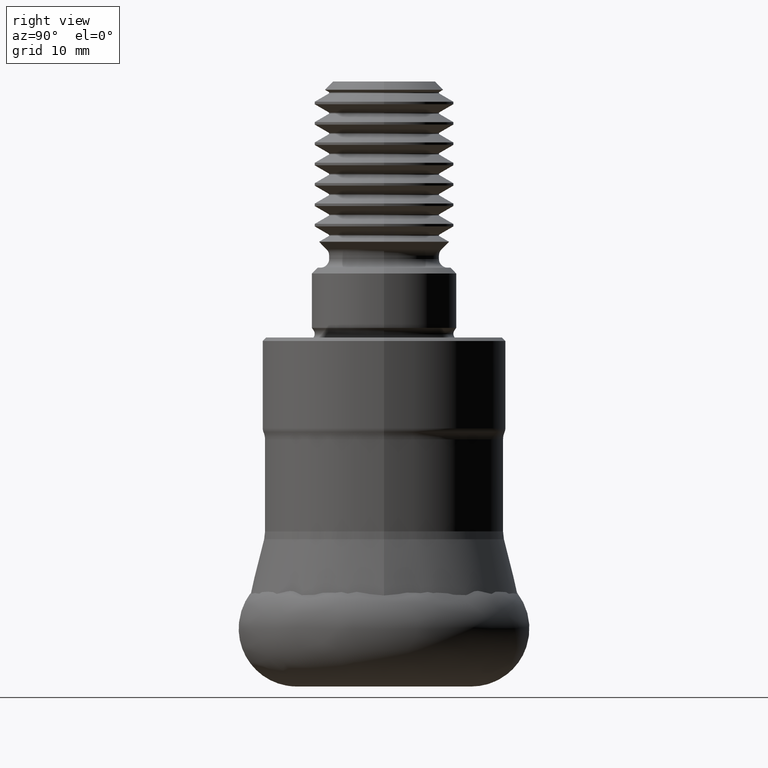
[diagram: clean part render]
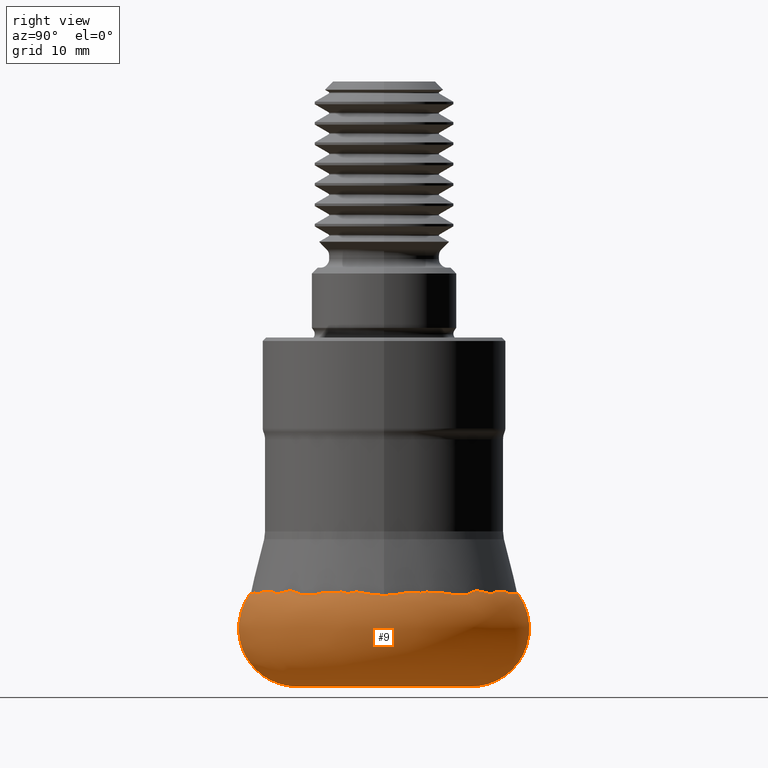
[diagram: same view with one face highlighted and labeled with its STEP entity id]
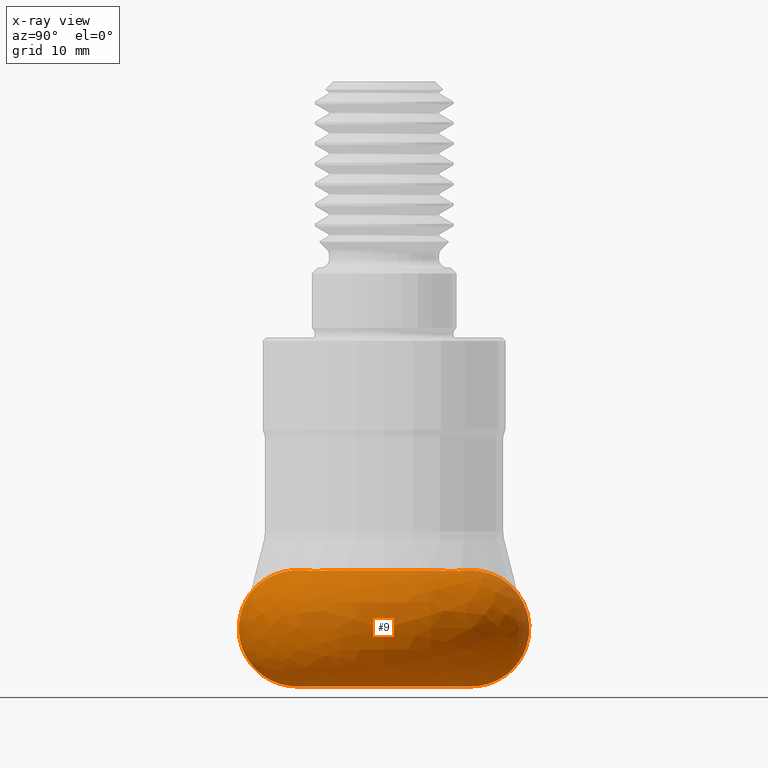
[diagram: x-ray of the same camera — body ghosted, the highlighted face saturated]
A machine part, right view. The second image highlights one B-rep face of the part: STEP entity #9.
The next image is the same camera in x-ray: the body ghosted, the highlighted face saturated — about 0% of this face is hidden behind the body in this view.
In plain terms, the highlighted face is a freeform B-spline surface patch.
Its self-contained STEP definition (entity closure, byte-faithful):
#9 = ADVANCED_FACE ( 'NONE', ( #541, #593 ), #1065, .T. ) ;
#51 = CARTESIAN_POINT ( 'NONE',  ( 17.64445853119345400, 8.822229265596822900, -0.1241915475170689300 ) ) ;
#54 = CARTESIAN_POINT ( 'NONE',  ( 1.142547889537403300E-015, -2.572789124786795300, -4.024994874336277600 ) ) ;
#59 = CARTESIAN_POINT ( 'NONE',  ( 1.747868350423320200E-015, -3.935849625829572300, -1.463454782935172900 ) ) ;
#67 = CARTESIAN_POINT ( 'NONE',  ( -7.559998977418291400E-014, 10.82634882408281700, -8.893348194339395700 ) ) ;
#106 = CARTESIAN_POINT ( 'NONE',  ( -1.994933634677373600E-014, 2.856858509429087300, -3.082692807583340000 ) ) ;
#165 = CARTESIAN_POINT ( 'NONE',  ( 7.085104202713067900E-014, -10.14627247737295000, -9.319955384866842600 ) ) ;
#209 = CARTESIAN_POINT ( 'NONE',  ( -2.748389104215336000E-014, 3.935849625829572300, -1.463454782935172900 ) ) ;
#222 = CARTESIAN_POINT ( 'NONE',  ( -7.084770207923276600E-014, 10.14579417782416500, -0.6797048844541228000 ) ) ;
#229 = CARTESIAN_POINT ( 'NONE',  ( 20.29158835564839300, 10.14579417782430700, -0.6797048844541229200 ) ) ;
#235 = CARTESIAN_POINT ( 'NONE',  ( -5.104562449148895100E-014, 7.310023960832968000, -10.11035027655898800 ) ) ;
#236 = CARTESIAN_POINT ( 'NONE',  ( -5.237276464745644200E-014, 7.500077984780183700, -0.009164402119928489300 ) ) ;
#239 = ORIENTED_EDGE ( 'NONE', *, *, #508, .F. ) ;
#245 = CARTESIAN_POINT ( 'NONE',  ( 2.323060321832751800E-014, -3.326754601246808100, -7.795097375808933500 ) ) ;
#246 = CARTESIAN_POINT ( 'NONE',  ( -8.480518454431260100E-014, 12.14458510788030300, -7.234615563619808400 ) ) ;
#251 = CARTESIAN_POINT ( 'NONE',  ( 18.37306567647206300, 9.186532838236130900, -9.803780883662765800 ) ) ;
#256 = CARTESIAN_POINT ( 'NONE',  ( -4.995416810384009500E-014, 7.153721193937685500, -0.009135782083590015400 ) ) ;
#260 = CARTESIAN_POINT ( 'NONE',  ( 5.237276464745640400E-014, -7.500077984780178400, -0.009164402119928232600 ) ) ;
#347 = CARTESIAN_POINT ( 'NONE',  ( 1.732146959325829300E-014, -2.480533033436974000, -5.025129972843883400 ) ) ;
#356 = EDGE_CURVE ( 'NONE', #1202, #1202, #1867, .T. ) ;
#394 = CARTESIAN_POINT ( 'NONE',  ( 17.64445853119352100, -8.822229265596691400, -0.1241915475170689300 ) ) ;
#397 = CARTESIAN_POINT ( 'NONE',  ( 21.65269764816578000, -10.82634882408280700, -8.893348194339395700 ) ) ;
#407 = CARTESIAN_POINT ( 'NONE',  ( 14.62004792166603700, -7.310023960832960900, -10.11035027655898600 ) ) ;
#408 = CARTESIAN_POINT ( 'NONE',  ( 24.28917021576068100, 12.14458510788047200, -7.234615563619808400 ) ) ;
#409 = CARTESIAN_POINT ( 'NONE',  ( 5.237276464745640400E-014, -7.500077984780178400, -0.009164402119928232600 ) ) ;
#412 = CARTESIAN_POINT ( 'NONE',  ( -2.321050462414510200E-014, 3.323876368165791900, -2.209178514363264500 ) ) ;
#427 = CARTESIAN_POINT ( 'NONE',  ( -5.237276464745644200E-014, 7.500077984780183700, -0.009164402119928489300 ) ) ;
#429 = CARTESIAN_POINT ( 'NONE',  ( -7.084770207923276600E-014, 10.14579417782416500, -0.6797048844541228000 ) ) ;
#433 = CARTESIAN_POINT ( 'NONE',  ( -1.732175717907286300E-014, 2.480574217362457600, -4.977240522939125000 ) ) ;
#449 = CARTESIAN_POINT ( 'NONE',  ( 12.94879358203875900, -6.474396791019328700, -0.08015674171691360200 ) ) ;
#508 = EDGE_CURVE ( 'NONE', #1462, #1462, #1971, .T. ) ;
#537 = CARTESIAN_POINT ( 'NONE',  ( 24.53305727013226400, 12.26652863506626900, -3.189311487728562000 ) ) ;
#540 = EDGE_LOOP ( 'NONE', ( #1255 ) ) ;
#541 = FACE_OUTER_BOUND ( 'NONE', #540, .T. ) ;
#559 = CARTESIAN_POINT ( 'NONE',  ( 1.996034557826833200E-014, -2.858435094039767600, -6.921325995203225100 ) ) ;
#561 = CARTESIAN_POINT ( 'NONE',  ( 15.84854497153991600, -7.924272485769898300, -0.009199454015412842100 ) ) ;
#572 = CARTESIAN_POINT ( 'NONE',  ( 1.140310566007888800E-015, -2.567751120079884600, -5.949560791875614800 ) ) ;
#580 = CARTESIAN_POINT ( 'NONE',  ( 1.476097629978042700E-015, -3.323876368165791900, -2.209178514363264500 ) ) ;
#582 = CARTESIAN_POINT ( 'NONE',  ( -1.994933634677373600E-014, 2.856858509429087300, -3.082692807583340000 ) ) ;
#586 = CARTESIAN_POINT ( 'NONE',  ( 9.344862946944180800, -4.672431473472054900, -0.8515757461315349700 ) ) ;
#593 = FACE_OUTER_BOUND ( 'NONE', #1531, .T. ) ;
#601 = CARTESIAN_POINT ( 'NONE',  ( -2.319835941423979500E-014, 3.322137104981110100, -7.788221888378447300 ) ) ;
#604 = CARTESIAN_POINT ( 'NONE',  ( 4.294234794166950200E-014, -6.149588637912927400, -9.867359996092027100 ) ) ;
#639 = CARTESIAN_POINT ( 'NONE',  ( 8.824113566181951600E-014, -12.63663286412656600, -4.853953940152148800 ) ) ;
#651 = CARTESIAN_POINT ( 'NONE',  ( 3.811320593218577900E-014, -5.458028016385474900, -0.3023040473065031200 ) ) ;
#675 = CARTESIAN_POINT ( 'NONE',  ( 5.613360426983182700E-014, -8.038651624074141500, -0.008578911802465234700 ) ) ;
#706 = CARTESIAN_POINT ( 'NONE',  ( 5.611798738316023800E-015, -12.63664735337910900, -5.148079995656458700 ) ) ;
#708 = CARTESIAN_POINT ( 'NONE',  ( 1.986802067630257900E-014, -2.845213642597563400, -3.105290082063039600 ) ) ;
#713 = CARTESIAN_POINT ( 'NONE',  ( 5.145578249573626200, -2.572789124786793100, -4.024994874336276700 ) ) ;
#719 = CARTESIAN_POINT ( 'NONE',  ( -5.533489901594742000E-014, 7.924272485769904500, -0.009199454015412842100 ) ) ;
#721 = CARTESIAN_POINT ( 'NONE',  ( -6.414921594674129800E-014, 9.186532838236003000, -9.803780883662764000 ) ) ;
#722 = CARTESIAN_POINT ( 'NONE',  ( 7.871699251659197900, -3.935849625829568300, -1.463454782935172700 ) ) ;
#730 = CARTESIAN_POINT ( 'NONE',  ( 1.475325241964635500E-015, -3.322137104981110100, -7.788221888378447300 ) ) ;
#734 = CARTESIAN_POINT ( 'NONE',  ( -8.565671164343640700E-014, 12.26652863506609500, -3.189311487728561500 ) ) ;
#735 = CARTESIAN_POINT ( 'NONE',  ( -3.811334659410584400E-014, 5.458048159973026600, -9.697466965223760800 ) ) ;
#738 = CARTESIAN_POINT ( 'NONE',  ( 14.30744238787541500, 7.153721193937784900, -0.009135782083590013700 ) ) ;
#745 = CARTESIAN_POINT ( 'NONE',  ( 11.03417469443295000, -5.517087347216430800, -0.3849734482204370000 ) ) ;
#756 = CARTESIAN_POINT ( 'NONE',  ( -8.480518454431260100E-014, 12.14458510788030300, -7.234615563619808400 ) ) ;
#762 = CARTESIAN_POINT ( 'NONE',  ( -3.852561503514751600E-014, 5.517087347216437000, -0.3849734482204369400 ) ) ;
#763 = CARTESIAN_POINT ( 'NONE',  ( 5.691119850185715200, -2.845559925092835400, -6.895507130279123800 ) ) ;
#780 = CARTESIAN_POINT ( 'NONE',  ( 1.796993258967177000E-014, -2.573396625345550200, -5.978426845597637900 ) ) ;
#850 = CARTESIAN_POINT ( 'NONE',  ( 2.797312247766935100E-014, -4.005910351927866500, -8.621156315112525400 ) ) ;
#851 = CARTESIAN_POINT ( 'NONE',  ( 15.00015596956041500, 7.500077984780287600, -0.009164402119928491100 ) ) ;
#868 = CARTESIAN_POINT ( 'NONE',  ( -8.565671164343640700E-014, 12.26652863506609500, -3.189311487728561500 ) ) ;
#881 = CARTESIAN_POINT ( 'NONE',  ( 20.29158835564846800, -10.14579417782415600, -0.6797048844541229200 ) ) ;
#882 = CARTESIAN_POINT ( 'NONE',  ( -1.793051023710493900E-014, 2.567751120079884600, -5.949560791875614800 ) ) ;
#890 = CARTESIAN_POINT ( 'NONE',  ( 5.135502240159784300, 2.567751120079920600, -5.949560791875614800 ) ) ;
#894 = CARTESIAN_POINT ( 'NONE',  ( 4.807864694848092100E-015, -10.82634882408281700, -8.893348194339395700 ) ) ;
#899 = CARTESIAN_POINT ( 'NONE',  ( 1.268700038105790400E-015, -2.856858509429087300, -3.082692807583340000 ) ) ;
#902 = CARTESIAN_POINT ( 'NONE',  ( 5.713717018858193200, 2.856858509429127200, -3.082692807583339500 ) ) ;
#911 = CARTESIAN_POINT ( 'NONE',  ( 7.561149495113097100E-014, -10.82799643090517900, -1.108030076883949900 ) ) ;
#917 = CARTESIAN_POINT ( 'NONE',  ( -3.262741459330203500E-014, 4.672431473472058400, -0.8515757461315349700 ) ) ;
#930 = CARTESIAN_POINT ( 'NONE',  ( 10.91609631994612800, -5.458048159973020400, -9.697466965223759100 ) ) ;
#1010 = CARTESIAN_POINT ( 'NONE',  ( 3.330703706074874600E-015, -7.500077984780183700, -0.009164402119928489300 ) ) ;
#1015 = CARTESIAN_POINT ( 'NONE',  ( 15.00015596956041500, 7.500077984780287600, -0.009164402119928491100 ) ) ;
#1022 = CARTESIAN_POINT ( 'NONE',  ( 4.727773380011933200E-014, -6.770440568326841400, -0.009957600322410203200 ) ) ;
#1027 = CARTESIAN_POINT ( 'NONE',  ( 22.72776775358783800, 11.36388387679404100, -1.699002531778220000 ) ) ;
#1034 = CARTESIAN_POINT ( 'NONE',  ( -3.262741459330203500E-014, 4.672431473472058400, -0.8515757461315349700 ) ) ;
#1035 = CARTESIAN_POINT ( 'NONE',  ( 22.72776775358791900, -11.36388387679387100, -1.699002531778220000 ) ) ;
#1038 = CARTESIAN_POINT ( 'NONE',  ( -1.732175717907286300E-014, 2.480574217362457600, -4.977240522939125000 ) ) ;
#1044 = CARTESIAN_POINT ( 'NONE',  ( -1.796569043594330600E-014, 2.572789124786795300, -4.024994874336277600 ) ) ;
#1050 = CARTESIAN_POINT ( 'NONE',  ( -1.987043875404301900E-014, 2.845559925092838500, -6.895507130279123800 ) ) ;
#1060 = CARTESIAN_POINT ( 'NONE',  ( -6.414921594674129800E-014, 9.186532838236003000, -9.803780883662764000 ) ) ;
#1061 = CARTESIAN_POINT ( 'NONE',  ( 1.822344107700449200E-015, -4.103554122190276500, -8.741929999581655500 ) ) ;
#1065 =( BOUNDED_SURFACE ( )  B_SPLINE_SURFACE ( 3, 3, ( 
 ( #1845, #1015, #1599, #1568 ),
 ( #256, #738, #1217, #1591 ),
 ( #2016, #1764, #449, #1257 ),
 ( #1921, #1432, #745, #1900 ),
 ( #917, #1088, #586, #1738 ),
 ( #1406, #1875, #722, #59 ),
 ( #412, #1401, #1731, #580 ),
 ( #106, #902, #1225, #899 ),
 ( #1044, #1872, #713, #54 ),
 ( #1038, #2031, #1383, #1711 ),
 ( #882, #890, #1221, #572 ),
 ( #1050, #1393, #763, #1754 ),
 ( #601, #1720, #1884, #730 ),
 ( #2060, #2081, #1226, #1061 ),
 ( #735, #1724, #930, #2037 ),
 ( #1700, #1556, #407, #1721 ),
 ( #1060, #251, #1563, #2048 ),
 ( #67, #1545, #397, #894 ),
 ( #246, #408, #2046, #1412 ),
 ( #1425, #1552, #1495, #706 ),
 ( #734, #537, #1858, #1368 ),
 ( #2023, #1027, #1035, #1200 ),
 ( #222, #229, #881, #2027 ),
 ( #1543, #51, #394, #1205 ),
 ( #719, #1381, #561, #1706 ),
 ( #1838, #851, #2003, #1010 ) ),
 .UNSPECIFIED., .T., .F., .T. ) 
 B_SPLINE_SURFACE_WITH_KNOTS ( ( 4, 1, 1, 1, 1, 1, 1, 1, 1, 1, 1, 1, 1, 1, 1, 1, 1, 1, 1, 1, 1, 1, 1, 4 ),
 ( 4, 4 ),
 ( 0.0000000000000000000, 0.03320394883883715600, 0.06516220103787766200, 0.09587428797656577500, 0.1253397804273764000, 0.1566471387144009500, 0.1879544872846255800, 0.2198983318124575500, 0.2505677222096027200, 0.2792981905221687500, 0.3132041225189032800, 0.3445497061412161100, 0.3758950549417949800, 0.4309753263760115500, 0.5006097235536065600, 0.5520401627210458400, 0.6107483177037161800, 0.6767028211823468100, 0.7498683893708825200, 0.8092330965371140600, 0.8639401200339874600, 0.9139774293117878300, 0.9593340368054635900, 1.000000000000000000 ),
 ( 0.0000000000000000000, 1.000000000000000000 ),
 .UNSPECIFIED. ) 
 GEOMETRIC_REPRESENTATION_ITEM ( )  RATIONAL_B_SPLINE_SURFACE ( (
 ( 1.000000000000000000, 0.3333333333333311500, 0.3333333333333311500, 1.000000000000000000),
 ( 1.000000000000000000, 0.3333333333333311500, 0.3333333333333311500, 1.000000000000000000),
 ( 1.000000000000000000, 0.3333333333333311500, 0.3333333333333311500, 1.000000000000000000),
 ( 1.000000000000000000, 0.3333333333333311500, 0.3333333333333311500, 1.000000000000000000),
 ( 1.000000000000000000, 0.3333333333333311500, 0.3333333333333311500, 1.000000000000000000),
 ( 1.000000000000000000, 0.3333333333333311500, 0.3333333333333311500, 1.000000000000000000),
 ( 1.000000000000000000, 0.3333333333333311500, 0.3333333333333311500, 1.000000000000000000),
 ( 1.000000000000000000, 0.3333333333333311500, 0.3333333333333311500, 1.000000000000000000),
 ( 1.000000000000000000, 0.3333333333333311500, 0.3333333333333311500, 1.000000000000000000),
 ( 1.000000000000000000, 0.3333333333333311500, 0.3333333333333311500, 1.000000000000000000),
 ( 1.000000000000000000, 0.3333333333333311500, 0.3333333333333311500, 1.000000000000000000),
 ( 1.000000000000000000, 0.3333333333333311500, 0.3333333333333311500, 1.000000000000000000),
 ( 1.000000000000000000, 0.3333333333333311500, 0.3333333333333311500, 1.000000000000000000),
 ( 1.000000000000000000, 0.3333333333333311500, 0.3333333333333311500, 1.000000000000000000),
 ( 1.000000000000000000, 0.3333333333333311500, 0.3333333333333311500, 1.000000000000000000),
 ( 1.000000000000000000, 0.3333333333333311500, 0.3333333333333311500, 1.000000000000000000),
 ( 1.000000000000000000, 0.3333333333333311500, 0.3333333333333311500, 1.000000000000000000),
 ( 1.000000000000000000, 0.3333333333333311500, 0.3333333333333311500, 1.000000000000000000),
 ( 1.000000000000000000, 0.3333333333333311500, 0.3333333333333311500, 1.000000000000000000),
 ( 1.000000000000000000, 0.3333333333333311500, 0.3333333333333311500, 1.000000000000000000),
 ( 1.000000000000000000, 0.3333333333333311500, 0.3333333333333311500, 1.000000000000000000),
 ( 1.000000000000000000, 0.3333333333333311500, 0.3333333333333311500, 1.000000000000000000),
 ( 1.000000000000000000, 0.3333333333333311500, 0.3333333333333311500, 1.000000000000000000),
 ( 1.000000000000000000, 0.3333333333333311500, 0.3333333333333311500, 1.000000000000000000),
 ( 1.000000000000000000, 0.3333333333333311500, 0.3333333333333311500, 1.000000000000000000),
 ( 1.000000000000000000, 0.3333333333333311500, 0.3333333333333311500, 1.000000000000000000) ) ) 
 REPRESENTATION_ITEM ( '' )  SURFACE ( )  );
#1067 = CARTESIAN_POINT ( 'NONE',  ( -1.793051023710493900E-014, 2.567751120079884600, -5.949560791875614800 ) ) ;
#1087 = CARTESIAN_POINT ( 'NONE',  ( 8.481233173875033700E-014, -12.14560862680309200, -2.767463656299170800 ) ) ;
#1088 = CARTESIAN_POINT ( 'NONE',  ( 9.344862946944147100, 4.672431473472123300, -0.8515757461315349700 ) ) ;
#1124 = CARTESIAN_POINT ( 'NONE',  ( -4.995416810384009500E-014, 7.153721193937685500, -0.009135782083590015400 ) ) ;
#1200 = CARTESIAN_POINT ( 'NONE',  ( 5.046578211673259600E-015, -11.36388387679388300, -1.699002531778220000 ) ) ;
#1202 = VERTEX_POINT ( 'NONE', #1894 ) ;
#1205 = CARTESIAN_POINT ( 'NONE',  ( 3.917856823674936000E-015, -8.822229265596700300, -0.1241915475170689300 ) ) ;
#1216 = CARTESIAN_POINT ( 'NONE',  ( 2.865055584697362900E-014, -4.102922666123529200, -1.258575001495027000 ) ) ;
#1217 = CARTESIAN_POINT ( 'NONE',  ( 14.30744238787546900, -7.153721193937678400, -0.009135782083590013700 ) ) ;
#1221 = CARTESIAN_POINT ( 'NONE',  ( 5.135502240159803800, -2.567751120079882400, -5.949560791875614800 ) ) ;
#1225 = CARTESIAN_POINT ( 'NONE',  ( 5.713717018858213600, -2.856858509429084600, -3.082692807583339500 ) ) ;
#1226 = CARTESIAN_POINT ( 'NONE',  ( 8.207108244380611600, -4.103554122190273800, -8.741929999581655500 ) ) ;
#1229 = CARTESIAN_POINT ( 'NONE',  ( 3.449634266442149900E-014, -4.940072610534345500, -9.347304805283341600 ) ) ;
#1255 = ORIENTED_EDGE ( 'NONE', *, *, #356, .T. ) ;
#1257 = CARTESIAN_POINT ( 'NONE',  ( 2.875209755179553900E-015, -6.474396791019335900, -0.08015674171691360200 ) ) ;
#1282 = CARTESIAN_POINT ( 'NONE',  ( -1.796569043594330600E-014, 2.572789124786795300, -4.024994874336277600 ) ) ;
#1328 = CARTESIAN_POINT ( 'NONE',  ( -4.521047115221975000E-014, 6.474396791019335900, -0.08015674171691360200 ) ) ;
#1368 = CARTESIAN_POINT ( 'NONE',  ( 5.447433009149675500E-015, -12.26652863506609500, -3.189311487728561500 ) ) ;
#1381 = CARTESIAN_POINT ( 'NONE',  ( 15.84854497153985700, 7.924272485770015500, -0.009199454015412842100 ) ) ;
#1383 = CARTESIAN_POINT ( 'NONE',  ( 4.961148434724949000, -2.480574217362455400, -4.977240522939125000 ) ) ;
#1387 = CARTESIAN_POINT ( 'NONE',  ( 5.215020837272736000E-014, -7.468206659527327300, -10.04963469629000400 ) ) ;
#1393 = CARTESIAN_POINT ( 'NONE',  ( 5.691119850185693900, 2.845559925092878000, -6.895507130279123800 ) ) ;
#1401 = CARTESIAN_POINT ( 'NONE',  ( 6.647752736331605100, 3.323876368165838500, -2.209178514363264500 ) ) ;
#1406 = CARTESIAN_POINT ( 'NONE',  ( -2.748389104215336000E-014, 3.935849625829572300, -1.463454782935172900 ) ) ;
#1412 = CARTESIAN_POINT ( 'NONE',  ( 5.393279204515400500E-015, -12.14458510788030300, -7.234615563619808400 ) ) ;
#1422 = CARTESIAN_POINT ( 'NONE',  ( -1.987043875404301900E-014, 2.845559925092838500, -6.895507130279123800 ) ) ;
#1425 = CARTESIAN_POINT ( 'NONE',  ( -8.824123683972927200E-014, 12.63664735337910900, -5.148079995656458700 ) ) ;
#1431 = CARTESIAN_POINT ( 'NONE',  ( 1.792812536460292300E-014, -2.567409592763744400, -4.051824912555354700 ) ) ;
#1432 = CARTESIAN_POINT ( 'NONE',  ( 11.03417469443291000, 5.517087347216514300, -0.3849734482204370000 ) ) ;
#1462 = VERTEX_POINT ( 'NONE', #409 ) ;
#1495 = CARTESIAN_POINT ( 'NONE',  ( 25.27329470675839900, -12.63664735337910200, -5.148079995656459600 ) ) ;
#1515 = CARTESIAN_POINT ( 'NONE',  ( -7.935357698521242100E-014, 11.36388387679388300, -1.699002531778220000 ) ) ;
#1523 = CARTESIAN_POINT ( 'NONE',  ( 8.565264301918911500E-014, -12.26594598491671200, -6.811869205661909500 ) ) ;
#1531 = EDGE_LOOP ( 'NONE', ( #239 ) ) ;
#1543 = CARTESIAN_POINT ( 'NONE',  ( -6.160529769565328800E-014, 8.822229265596700300, -0.1241915475170689300 ) ) ;
#1545 = CARTESIAN_POINT ( 'NONE',  ( 21.65269764816569900, 10.82634882408296800, -8.893348194339395700 ) ) ;
#1552 = CARTESIAN_POINT ( 'NONE',  ( 25.27329470675830300, 12.63664735337928800, -5.148079995656459600 ) ) ;
#1556 = CARTESIAN_POINT ( 'NONE',  ( 14.62004792166598000, 7.310023960833070200, -10.11035027655898600 ) ) ;
#1563 = CARTESIAN_POINT ( 'NONE',  ( 18.37306567647212700, -9.186532838235994100, -9.803780883662765800 ) ) ;
#1568 = CARTESIAN_POINT ( 'NONE',  ( 3.330703706074874600E-015, -7.500077984780183700, -0.009164402119928489300 ) ) ;
#1577 = CARTESIAN_POINT ( 'NONE',  ( -7.559998977418291400E-014, 10.82634882408281700, -8.893348194339395700 ) ) ;
#1591 = CARTESIAN_POINT ( 'NONE',  ( 3.176890392503427800E-015, -7.153721193937685500, -0.009135782083590015400 ) ) ;
#1596 = CARTESIAN_POINT ( 'NONE',  ( 7.935155194500167400E-014, -11.36359387950989200, -8.301157740592751500 ) ) ;
#1599 = CARTESIAN_POINT ( 'NONE',  ( 15.00015596956047200, -7.500077984780175700, -0.009164402119928491100 ) ) ;
#1672 = CARTESIAN_POINT ( 'NONE',  ( -3.811334659410584400E-014, 5.458048159973026600, -9.697466965223760800 ) ) ;
#1700 = CARTESIAN_POINT ( 'NONE',  ( -5.104562449148895100E-014, 7.310023960832968000, -10.11035027655898800 ) ) ;
#1706 = CARTESIAN_POINT ( 'NONE',  ( 3.519083906842149200E-015, -7.924272485769904500, -0.009199454015412842100 ) ) ;
#1711 = CARTESIAN_POINT ( 'NONE',  ( 1.101596244162932700E-015, -2.480574217362457600, -4.977240522939125000 ) ) ;
#1718 = CARTESIAN_POINT ( 'NONE',  ( -2.321050462414510200E-014, 3.323876368165791900, -2.209178514363264500 ) ) ;
#1720 = CARTESIAN_POINT ( 'NONE',  ( 6.644274209962241600, 3.322137104981156800, -7.788221888378444600 ) ) ;
#1721 = CARTESIAN_POINT ( 'NONE',  ( 3.246302764751337800E-015, -7.310023960832968000, -10.11035027655898800 ) ) ;
#1724 = CARTESIAN_POINT ( 'NONE',  ( 10.91609631994608700, 5.458048159973103000, -9.697466965223759100 ) ) ;
#1731 = CARTESIAN_POINT ( 'NONE',  ( 6.647752736331629100, -3.323876368165788800, -2.209178514363264500 ) ) ;
#1738 = CARTESIAN_POINT ( 'NONE',  ( 2.074976401132769800E-015, -4.672431473472058400, -0.8515757461315349700 ) ) ;
#1751 = CARTESIAN_POINT ( 'NONE',  ( -2.319835941423979500E-014, 3.322137104981110100, -7.788221888378447300 ) ) ;
#1754 = CARTESIAN_POINT ( 'NONE',  ( 1.263682458715479700E-015, -2.845559925092838500, -6.895507130279123800 ) ) ;
#1763 = CARTESIAN_POINT ( 'NONE',  ( -2.865496528112033300E-014, 4.103554122190276500, -8.741929999581655500 ) ) ;
#1764 = CARTESIAN_POINT ( 'NONE',  ( 12.94879358203871400, 6.474396791019424700, -0.08015674171691360200 ) ) ;
#1819 = CARTESIAN_POINT ( 'NONE',  ( -8.824123683972927200E-014, 12.63664735337910900, -5.148079995656458700 ) ) ;
#1838 = CARTESIAN_POINT ( 'NONE',  ( -5.237276464745644200E-014, 7.500077984780183700, -0.009164402119928489300 ) ) ;
#1845 = CARTESIAN_POINT ( 'NONE',  ( -5.237276464745644200E-014, 7.500077984780183700, -0.009164402119928489300 ) ) ;
#1858 = CARTESIAN_POINT ( 'NONE',  ( 24.53305727013236000, -12.26652863506608400, -3.189311487728562000 ) ) ;
#1867 = B_SPLINE_CURVE_WITH_KNOTS ( 'NONE', 3,
 ( #236, #1124, #1328, #762, #1034, #209, #1718, #582, #1282, #433, #1067, #1422, #1751, #1763, #1672, #235, #721, #1577, #756, #1819, #868, #1515, #429, #2054, #1942, #427 ),
 .UNSPECIFIED., .T., .F.,
 ( 4, 1, 1, 1, 1, 1, 1, 1, 1, 1, 1, 1, 1, 1, 1, 1, 1, 1, 1, 1, 1, 1, 1, 4 ),
 ( 0.0000000000000000000, 0.03320394883883715600, 0.06516220103787766200, 0.09587428797656577500, 0.1253397804273764000, 0.1566471387144009500, 0.1879544872846255800, 0.2198983318124575500, 0.2505677222096027200, 0.2792981905221687500, 0.3132041225189032800, 0.3445497061412161100, 0.3758950549417949800, 0.4309753263760115500, 0.5006097235536065600, 0.5520401627210458400, 0.6107483177037161800, 0.6767028211823468100, 0.7498683893708825200, 0.8092330965371140600, 0.8639401200339874600, 0.9139774293117878300, 0.9593340368054635900, 1.000000000000000000 ),
 .UNSPECIFIED. ) ;
#1872 = CARTESIAN_POINT ( 'NONE',  ( 5.145578249573607500, 2.572789124786831300, -4.024994874336276700 ) ) ;
#1875 = CARTESIAN_POINT ( 'NONE',  ( 7.871699251659168600, 3.935849625829626900, -1.463454782935172700 ) ) ;
#1879 = CARTESIAN_POINT ( 'NONE',  ( 2.319513188258559300E-014, -3.321674904078259200, -2.212543924002863700 ) ) ;
#1884 = CARTESIAN_POINT ( 'NONE',  ( 6.644274209962266500, -3.322137104981107500, -7.788221888378444600 ) ) ;
#1894 = CARTESIAN_POINT ( 'NONE',  ( -5.237276464745644200E-014, 7.500077984780183700, -0.009164402119928489300 ) ) ;
#1900 = CARTESIAN_POINT ( 'NONE',  ( 2.450078960699126800E-015, -5.517087347216437000, -0.3849734482204369400 ) ) ;
#1921 = CARTESIAN_POINT ( 'NONE',  ( -3.852561503514751600E-014, 5.517087347216437000, -0.3849734482204369400 ) ) ;
#1942 = CARTESIAN_POINT ( 'NONE',  ( -5.533489901594742000E-014, 7.924272485769904500, -0.009199454015412842100 ) ) ;
#1971 = B_SPLINE_CURVE_WITH_KNOTS ( 'NONE', 3,
 ( #2105, #1022, #651, #1216, #1879, #708, #1431, #347, #780, #559, #245, #850, #1229, #604, #1387, #2072, #165, #1596, #1523, #639, #1087, #911, #2138, #675, #260 ),
 .UNSPECIFIED., .T., .F.,
 ( 4, 1, 1, 1, 1, 1, 1, 1, 1, 1, 1, 1, 1, 1, 1, 1, 1, 1, 1, 1, 1, 1, 4 ),
 ( 0.0000000000000000000, 0.06969651394580489400, 0.1248344672711788600, 0.1561653399121980500, 0.1874964475019642600, 0.2214449281131275500, 0.2502140659693914400, 0.2809070368793379300, 0.3129080538986266400, 0.3442302872250847500, 0.3755525322570191200, 0.4150354968395898500, 0.4567328157812548000, 0.5006425315740870000, 0.5412973800838224400, 0.5866390554236867700, 0.6366576378181070300, 0.6913421653192455300, 0.7506806358622042400, 0.8238612983936579600, 0.8898309477424594100, 0.9485543033903671700, 1.000000000000000000 ),
 .UNSPECIFIED. ) ;
#2003 = CARTESIAN_POINT ( 'NONE',  ( 15.00015596956047200, -7.500077984780175700, -0.009164402119928491100 ) ) ;
#2016 = CARTESIAN_POINT ( 'NONE',  ( -4.521047115221975000E-014, 6.474396791019335900, -0.08015674171691360200 ) ) ;
#2023 = CARTESIAN_POINT ( 'NONE',  ( -7.935357698521242100E-014, 11.36388387679388300, -1.699002531778220000 ) ) ;
#2027 = CARTESIAN_POINT ( 'NONE',  ( 4.505637719731295800E-015, -10.14579417782416500, -0.6797048844541228000 ) ) ;
#2031 = CARTESIAN_POINT ( 'NONE',  ( 4.961148434724931300, 2.480574217362492300, -4.977240522939125000 ) ) ;
#2037 = CARTESIAN_POINT ( 'NONE',  ( 2.423860294686004000E-015, -5.458048159973026600, -9.697466965223760800 ) ) ;
#2046 = CARTESIAN_POINT ( 'NONE',  ( 24.28917021576077700, -12.14458510788029200, -7.234615563619808400 ) ) ;
#2048 = CARTESIAN_POINT ( 'NONE',  ( 4.079640109393880400E-015, -9.186532838236003000, -9.803780883662764000 ) ) ;
#2054 = CARTESIAN_POINT ( 'NONE',  ( -6.160529769565328800E-014, 8.822229265596700300, -0.1241915475170689300 ) ) ;
#2060 = CARTESIAN_POINT ( 'NONE',  ( -2.865496528112033300E-014, 4.103554122190276500, -8.741929999581655500 ) ) ;
#2072 = CARTESIAN_POINT ( 'NONE',  ( 6.161253802457114900E-014, -8.823266121907131800, -9.875378549908415200 ) ) ;
#2081 = CARTESIAN_POINT ( 'NONE',  ( 8.207108244380579600, 4.103554122190334200, -8.741929999581655500 ) ) ;
#2105 = CARTESIAN_POINT ( 'NONE',  ( 5.237276464745640400E-014, -7.500077984780178400, -0.009164402119928232600 ) ) ;
#2138 = CARTESIAN_POINT ( 'NONE',  ( 6.416206547659357400E-014, -9.188372964045830900, -0.1968408267578138400 ) ) ;